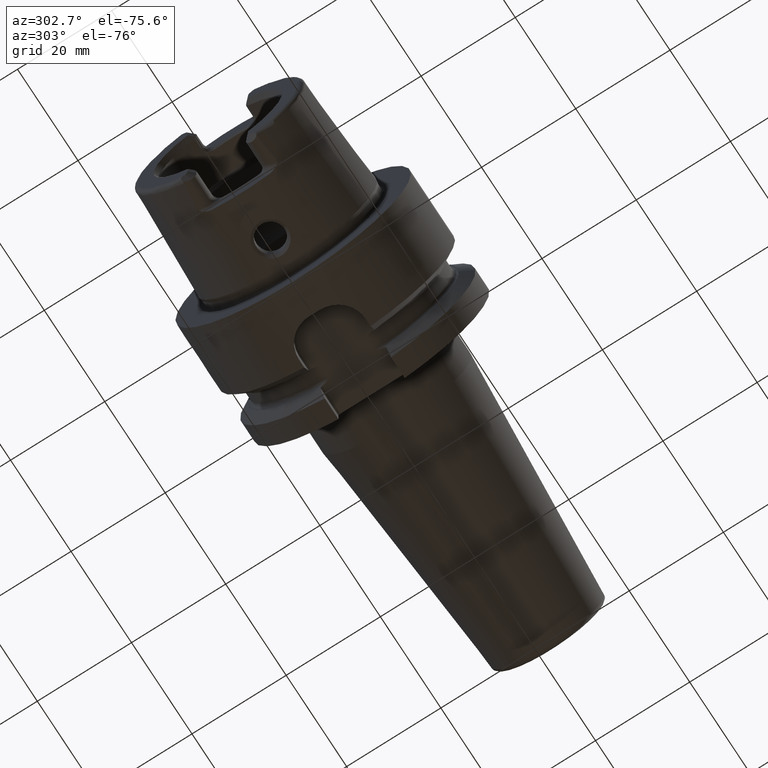
[diagram: clean part render]
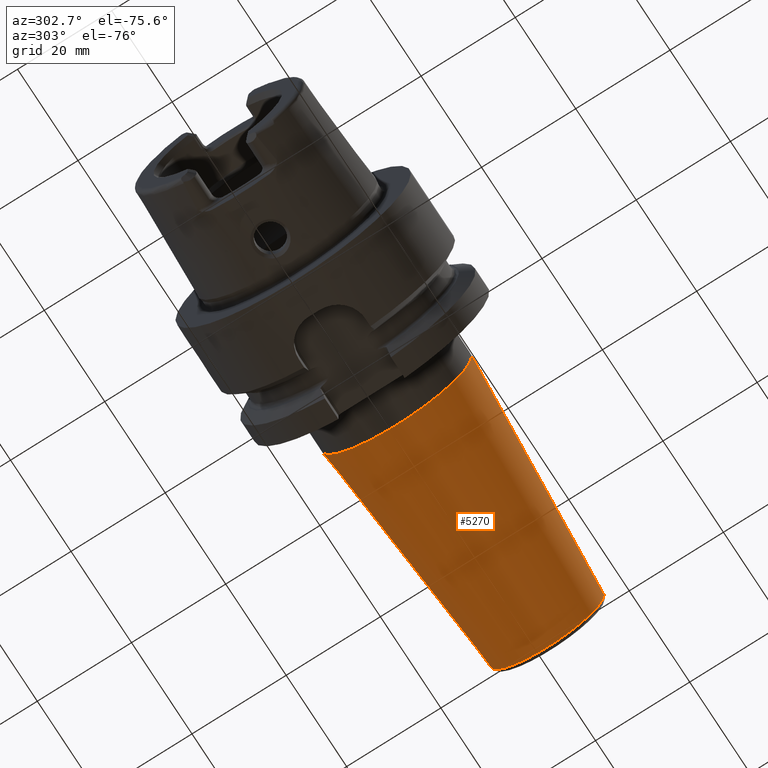
[diagram: same view with one face highlighted and labeled with its STEP entity id]
A machine part, auxiliary view. The second image highlights one B-rep face of the part: STEP entity #5270.
In plain terms, the highlighted conical surface has half-angle 4.5 deg.
Its self-contained STEP definition (entity closure, byte-faithful):
#1921=CARTESIAN_POINT('',(3.417518105530E1,0.E0,0.E0));
#1922=DIRECTION('',(-1.E0,0.E0,0.E0));
#1923=DIRECTION('',(0.E0,1.E0,0.E0));
#1924=AXIS2_PLACEMENT_3D('',#1921,#1922,#1923);
#1930=CARTESIAN_POINT('',(8.407845909573E1,0.E0,0.E0));
#1931=DIRECTION('',(-1.E0,0.E0,0.E0));
#1932=DIRECTION('',(0.E0,1.E0,0.E0));
#1933=AXIS2_PLACEMENT_3D('',#1930,#1931,#1932);
#1935=DIRECTION('',(-9.969173337331E-1,7.845909572784E-2,1.087755894032E-14));
#1936=VECTOR('',#1935,5.005758888107E1);
#1937=CARTESIAN_POINT('',(8.407845909573E1,1.207252684207E1,
-5.425449385856E-13));
#1938=LINE('',#1937,#1936);
#1939=DIRECTION('',(-9.969173337331E-1,-7.845909572784E-2,-1.087017515412E-14));
#1940=VECTOR('',#1939,5.005758888107E1);
#1941=CARTESIAN_POINT('',(8.407845909573E1,-1.207252684207E1,
5.421753240518E-13));
#1942=LINE('',#1941,#1940);
#3218=CARTESIAN_POINT('',(3.417518105530E1,1.6E1,0.E0));
#3219=CARTESIAN_POINT('',(3.417518105530E1,-1.6E1,0.E0));
#3220=VERTEX_POINT('',#3218);
#3221=VERTEX_POINT('',#3219);
#3230=CARTESIAN_POINT('',(8.407845909573E1,1.207252684207E1,0.E0));
#3231=CARTESIAN_POINT('',(8.407845909573E1,-1.207252684207E1,0.E0));
#3232=VERTEX_POINT('',#3230);
#3233=VERTEX_POINT('',#3231);
#5256=CARTESIAN_POINT('',(5.912682007551E1,0.E0,0.E0));
#5257=DIRECTION('',(-1.E0,0.E0,0.E0));
#5258=DIRECTION('',(0.E0,1.E0,0.E0));
#5259=AXIS2_PLACEMENT_3D('',#5256,#5257,#5258);
#5260=CONICAL_SURFACE('',#5259,1.403626342104E1,4.5E0);
#5262=ORIENTED_EDGE('',*,*,#5261,.F.);
#5264=ORIENTED_EDGE('',*,*,#5263,.T.);
#5265=ORIENTED_EDGE('',*,*,#5250,.T.);
#5267=ORIENTED_EDGE('',*,*,#5266,.F.);
#5268=EDGE_LOOP('',(#5262,#5264,#5265,#5267));
#5269=FACE_OUTER_BOUND('',#5268,.F.);
#5270=ADVANCED_FACE('',(#5269),#5260,.T.);
#1925=CIRCLE('',#1924,1.6E1);
#1934=CIRCLE('',#1933,1.207252684207E1);
#5250=EDGE_CURVE('',#3220,#3221,#1925,.T.);
#5261=EDGE_CURVE('',#3232,#3233,#1934,.T.);
#5263=EDGE_CURVE('',#3232,#3220,#1938,.T.);
#5266=EDGE_CURVE('',#3233,#3221,#1942,.T.);